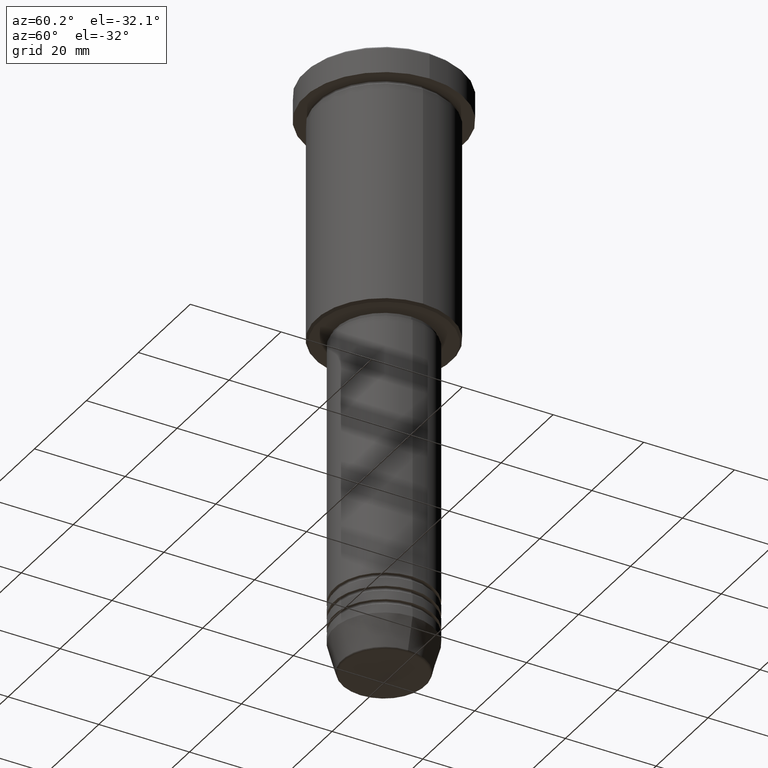
[diagram: clean part render]
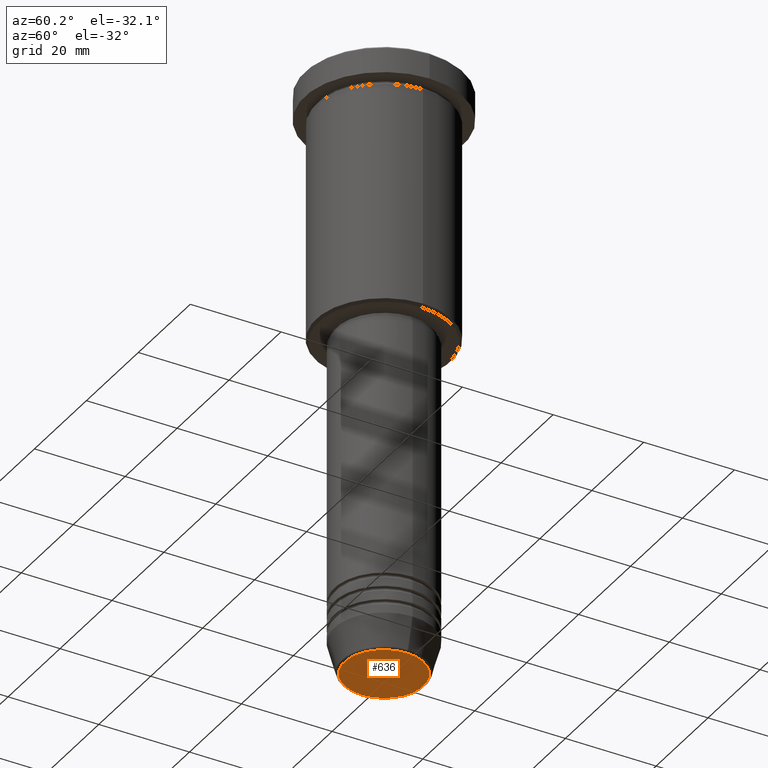
[diagram: same view with one face highlighted and labeled with its STEP entity id]
A machine part, auxiliary view. The second image highlights one B-rep face of the part: STEP entity #636.
In plain terms, the highlighted planar face has unit normal (0, -0, 1).
Its self-contained STEP definition (entity closure, byte-faithful):
#4 = CARTESIAN_POINT ( 'NONE',  ( 0.000000000000000000, 0.000000000000000000, -131.0000000000000000 ) ) ;
#15 = VERTEX_POINT ( 'NONE', #444 ) ;
#129 = PLANE ( 'NONE',  #921 ) ;
#218 = DIRECTION ( 'NONE',  ( 1.000000000000000000, 0.000000000000000000, 0.000000000000000000 ) ) ;
#321 = CARTESIAN_POINT ( 'NONE',  ( 0.000000000000000000, 0.000000000000000000, -131.0000000000000000 ) ) ;
#403 = CARTESIAN_POINT ( 'NONE',  ( 0.000000000000000000, 0.000000000000000000, -131.0000000000000000 ) ) ;
#406 = CIRCLE ( 'NONE', #1161, 8.740692158992652949 ) ;
#444 = CARTESIAN_POINT ( 'NONE',  ( 8.740692158992652949, 0.000000000000000000, -131.0000000000000000 ) ) ;
#479 = FACE_OUTER_BOUND ( 'NONE', #677, .T. ) ;
#481 = AXIS2_PLACEMENT_3D ( 'NONE', #403, #1120, #656 ) ;
#616 = EDGE_CURVE ( 'NONE', #15, #1138, #406, .T. ) ;
#636 = ADVANCED_FACE ( 'NONE', ( #479 ), #129, .F. ) ;
#647 = DIRECTION ( 'NONE',  ( 0.000000000000000000, 0.000000000000000000, -1.000000000000000000 ) ) ;
#656 = DIRECTION ( 'NONE',  ( 1.000000000000000000, 0.000000000000000000, 0.000000000000000000 ) ) ;
#677 = EDGE_LOOP ( 'NONE', ( #799, #736 ) ) ;
#736 = ORIENTED_EDGE ( 'NONE', *, *, #1125, .T. ) ;
#799 = ORIENTED_EDGE ( 'NONE', *, *, #616, .T. ) ;
#906 = CIRCLE ( 'NONE', #481, 8.740692158992652949 ) ;
#921 = AXIS2_PLACEMENT_3D ( 'NONE', #321, #1112, #218 ) ;
#997 = CARTESIAN_POINT ( 'NONE',  ( -8.740692158992652949, 1.099999016768739259E-15, -131.0000000000000000 ) ) ;
#1023 = DIRECTION ( 'NONE',  ( 1.000000000000000000, 0.000000000000000000, 0.000000000000000000 ) ) ;
#1112 = DIRECTION ( 'NONE',  ( 0.000000000000000000, -0.000000000000000000, 1.000000000000000000 ) ) ;
#1120 = DIRECTION ( 'NONE',  ( 0.000000000000000000, 0.000000000000000000, -1.000000000000000000 ) ) ;
#1125 = EDGE_CURVE ( 'NONE', #1138, #15, #906, .T. ) ;
#1138 = VERTEX_POINT ( 'NONE', #997 ) ;
#1161 = AXIS2_PLACEMENT_3D ( 'NONE', #4, #647, #1023 ) ;